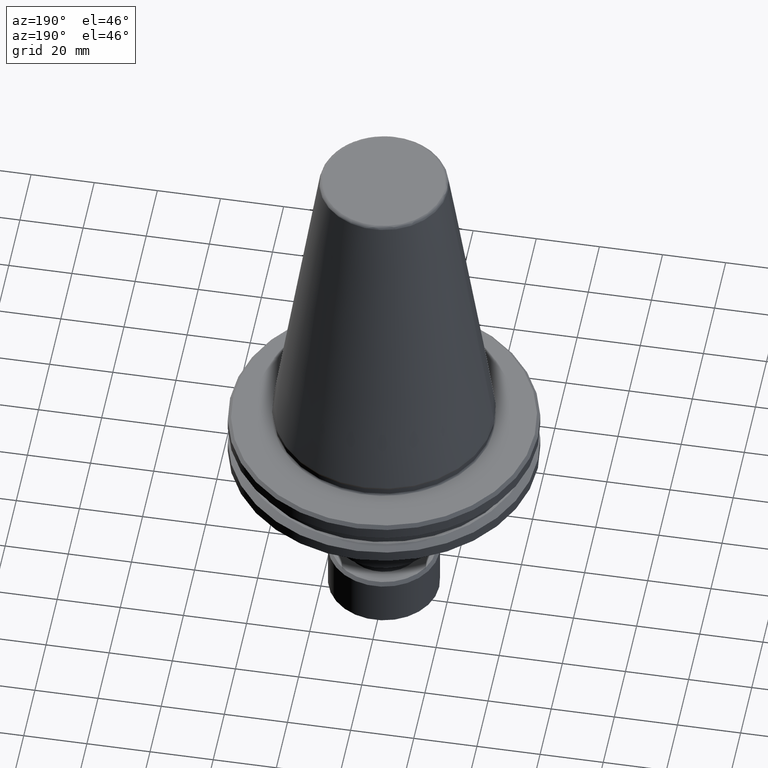
[diagram: clean part render]
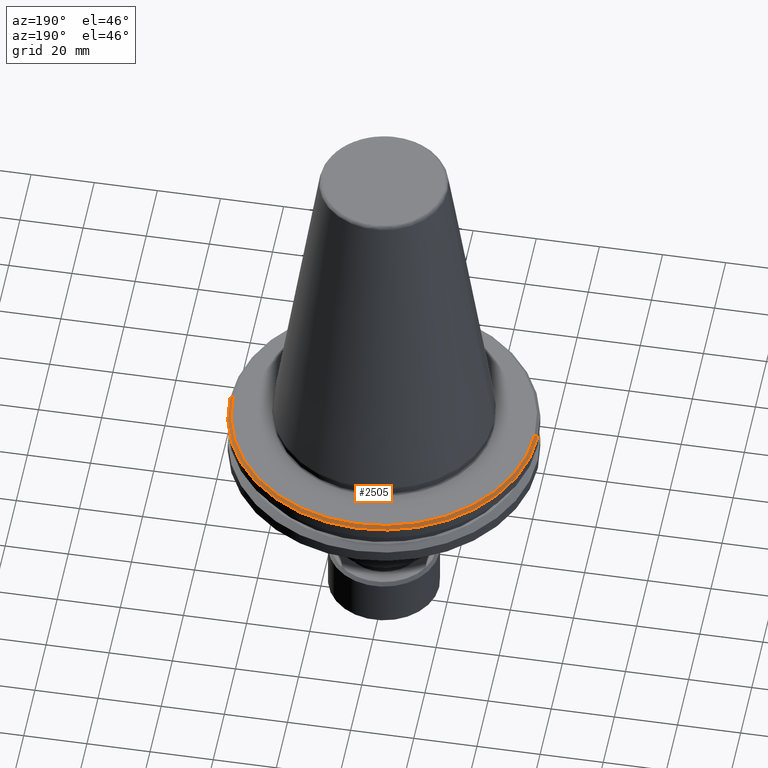
[diagram: same view with one face highlighted and labeled with its STEP entity id]
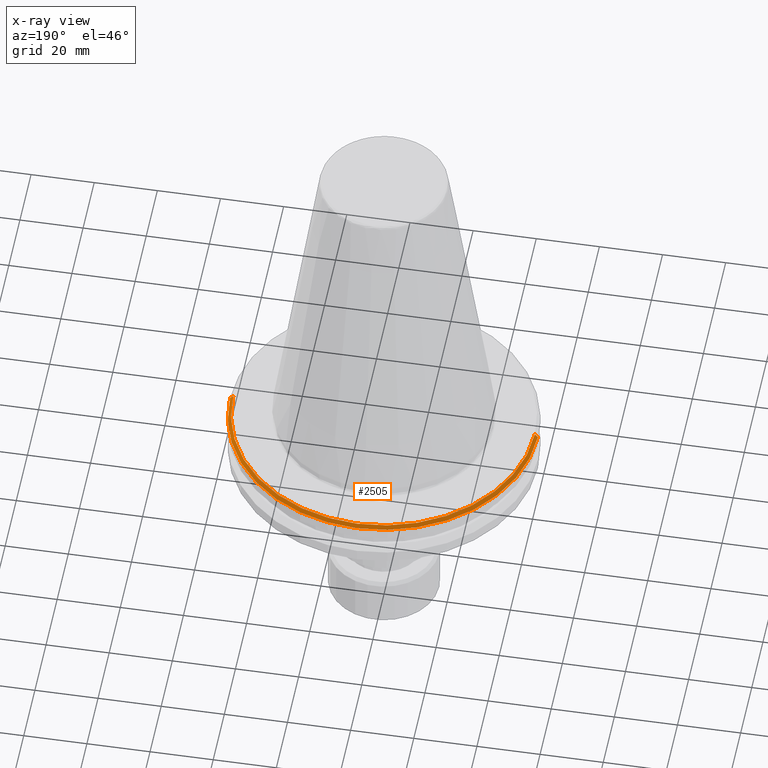
[diagram: x-ray of the same camera — body ghosted, the highlighted face saturated]
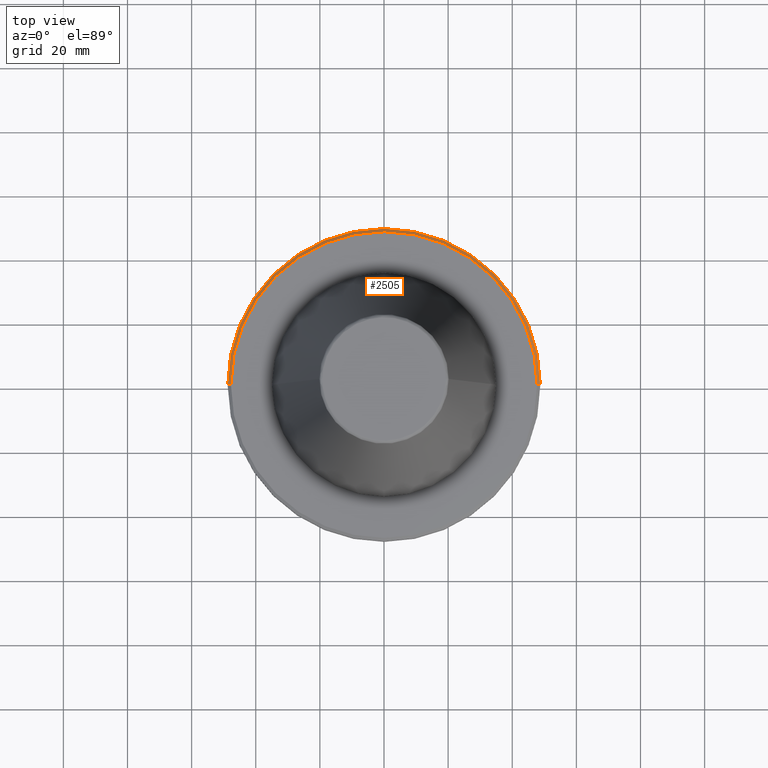
[diagram: same view with one face highlighted and labeled with its STEP entity id]
A machine part, auxiliary view. The second image highlights one B-rep face of the part: STEP entity #2505.
The next image is the same camera in x-ray: the body ghosted, the highlighted face saturated — about 0% of this face is hidden behind the body in this view.
A second angle (top view) of the same face is appended — the face is thin or edge-on in the first view.
In plain terms, the highlighted conical surface has half-angle 45 deg.
Its self-contained STEP definition (entity closure, byte-faithful):
#53 = DIRECTION ( 'NONE',  ( 0.0000000000000000000, 0.0000000000000000000, -1.000000000000000000 ) ) ;
#84 = CARTESIAN_POINT ( 'NONE',  ( 0.0000000000000000000, 0.0000000000000000000, -4.199999999999870500 ) ) ;
#110 = VERTEX_POINT ( 'NONE', #2499 ) ;
#320 = DIRECTION ( 'NONE',  ( 1.000000000000000000, 0.0000000000000000000, 0.0000000000000000000 ) ) ;
#346 = AXIS2_PLACEMENT_3D ( 'NONE', #84, #1585, #320 ) ;
#418 = VERTEX_POINT ( 'NONE', #2331 ) ;
#421 = AXIS2_PLACEMENT_3D ( 'NONE', #2316, #1163, #2500 ) ;
#512 = LINE ( 'NONE', #2512, #2071 ) ;
#585 = AXIS2_PLACEMENT_3D ( 'NONE', #2486, #53, #1140 ) ;
#597 = ORIENTED_EDGE ( 'NONE', *, *, #2573, .T. ) ;
#641 = ORIENTED_EDGE ( 'NONE', *, *, #2533, .F. ) ;
#647 = EDGE_LOOP ( 'NONE', ( #641, #597, #1279, #1635 ) ) ;
#648 = CIRCLE ( 'NONE', #421, 47.75000000000095900 ) ;
#750 = CARTESIAN_POINT ( 'NONE',  ( 48.63284271247462700, 5.955805516126873700E-015, -4.082842712474612100 ) ) ;
#807 = FACE_OUTER_BOUND ( 'NONE', #647, .T. ) ;
#827 = VERTEX_POINT ( 'NONE', #1782 ) ;
#969 = DIRECTION ( 'NONE',  ( 0.7071067811865499000, 8.659560562354961200E-017, -0.7071067811865451300 ) ) ;
#978 = DIRECTION ( 'NONE',  ( -0.7071067811865499000, 0.0000000000000000000, -0.7071067811865451300 ) ) ;
#1021 = CARTESIAN_POINT ( 'NONE',  ( -47.75000000000095900, 0.0000000000000000000, -3.199999999999869600 ) ) ;
#1140 = DIRECTION ( 'NONE',  ( -1.000000000000000000, 0.0000000000000000000, 0.0000000000000000000 ) ) ;
#1163 = DIRECTION ( 'NONE',  ( -0.0000000000000000000, -0.0000000000000000000, 1.000000000000000000 ) ) ;
#1279 = ORIENTED_EDGE ( 'NONE', *, *, #2583, .T. ) ;
#1356 = LINE ( 'NONE', #750, #2612 ) ;
#1585 = DIRECTION ( 'NONE',  ( -0.0000000000000000000, -0.0000000000000000000, 1.000000000000000000 ) ) ;
#1635 = ORIENTED_EDGE ( 'NONE', *, *, #2615, .F. ) ;
#1703 = CIRCLE ( 'NONE', #346, 48.75000000000095900 ) ;
#1763 = CONICAL_SURFACE ( 'NONE', #585, 48.63284271247462700, 0.7853981633974517200 ) ;
#1782 = CARTESIAN_POINT ( 'NONE',  ( 48.75000000000095900, 0.0000000000000000000, -4.199999999999870500 ) ) ;
#2071 = VECTOR ( 'NONE', #978, 1000.000000000000100 ) ;
#2316 = CARTESIAN_POINT ( 'NONE',  ( 0.0000000000000000000, 0.0000000000000000000, -3.199999999999869600 ) ) ;
#2331 = CARTESIAN_POINT ( 'NONE',  ( 47.75000000000095900, 5.908920805886097100E-015, -3.199999999999869600 ) ) ;
#2386 = VERTEX_POINT ( 'NONE', #1021 ) ;
#2486 = CARTESIAN_POINT ( 'NONE',  ( 0.0000000000000000000, 0.0000000000000000000, -4.082842712474612100 ) ) ;
#2499 = CARTESIAN_POINT ( 'NONE',  ( -48.75000000000095200, 5.970153145843463100E-015, -4.199999999999870500 ) ) ;
#2500 = DIRECTION ( 'NONE',  ( 1.000000000000000000, 0.0000000000000000000, 0.0000000000000000000 ) ) ;
#2505 = ADVANCED_FACE ( 'NONE', ( #807 ), #1763, .T. ) ;
#2512 = CARTESIAN_POINT ( 'NONE',  ( -48.63284271247462700, 0.0000000000000000000, -4.082842712474612100 ) ) ;
#2533 = EDGE_CURVE ( 'NONE', #418, #2386, #648, .T. ) ;
#2573 = EDGE_CURVE ( 'NONE', #418, #827, #1356, .T. ) ;
#2583 = EDGE_CURVE ( 'NONE', #827, #110, #1703, .T. ) ;
#2612 = VECTOR ( 'NONE', #969, 1000.000000000000100 ) ;
#2615 = EDGE_CURVE ( 'NONE', #2386, #110, #512, .T. ) ;